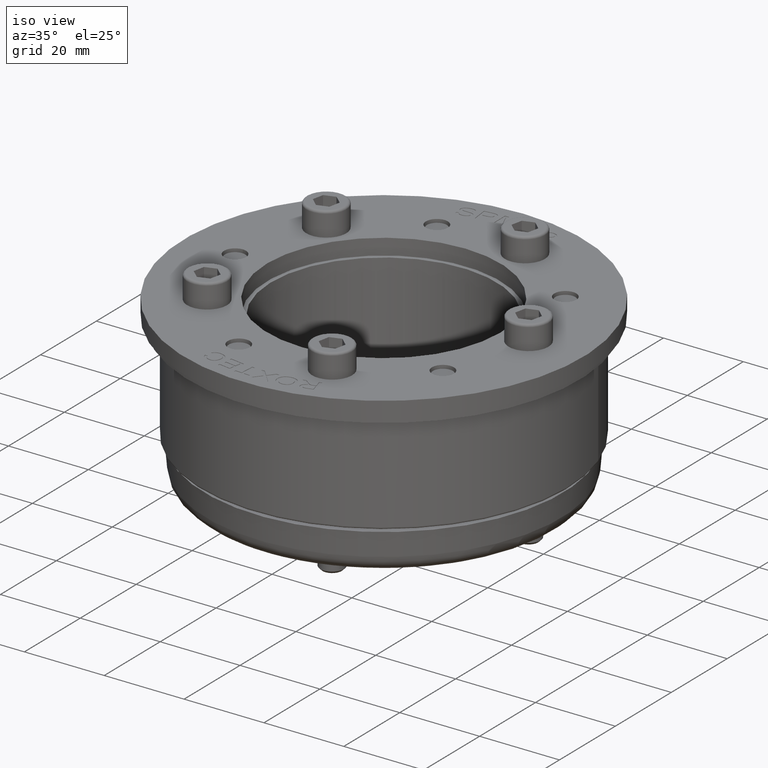
[diagram: clean part render]
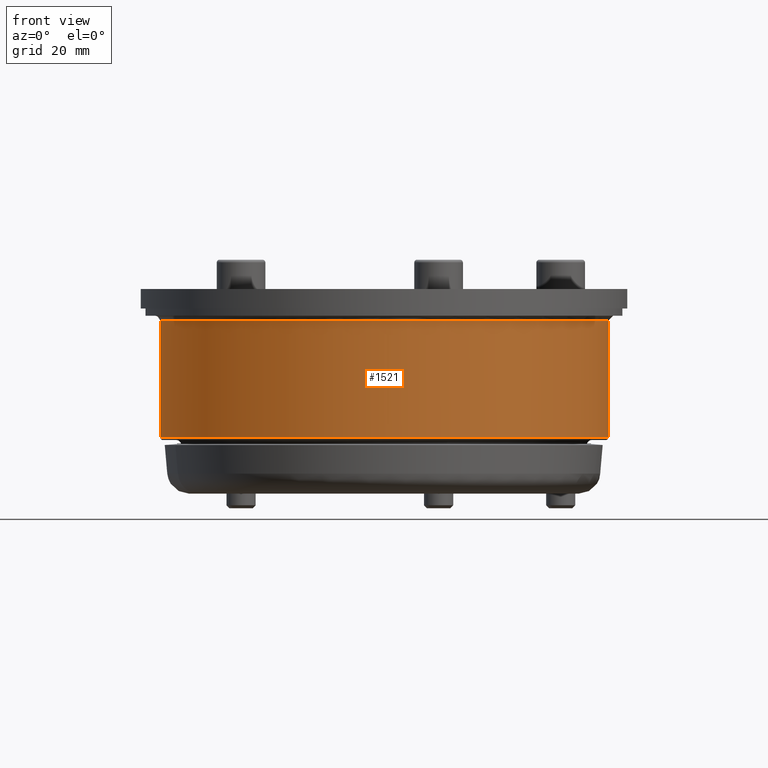
[diagram: tour spotlight — one face highlighted and labeled with its STEP entity id]
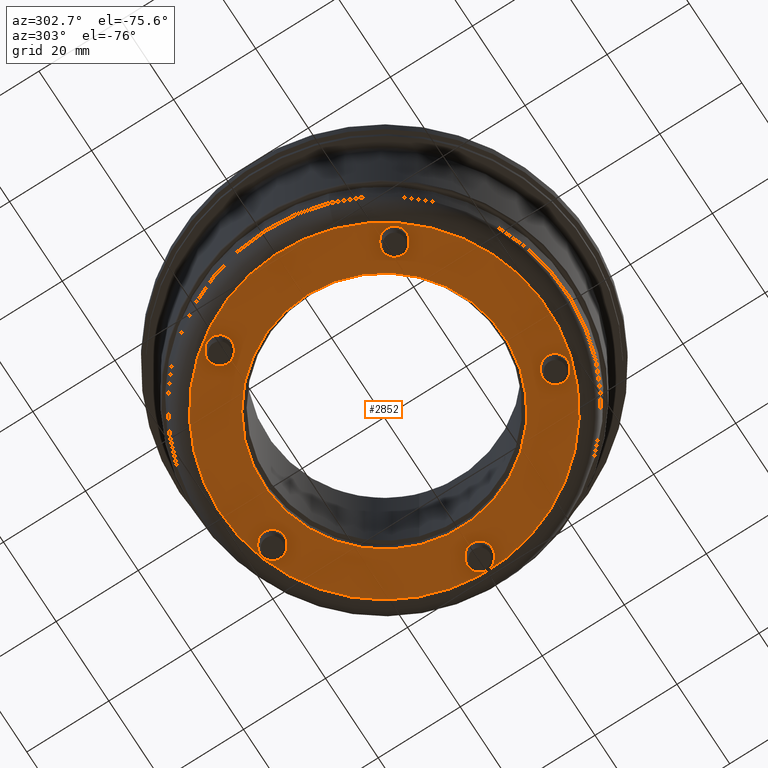
[diagram: tour spotlight — one face highlighted and labeled with its STEP entity id]
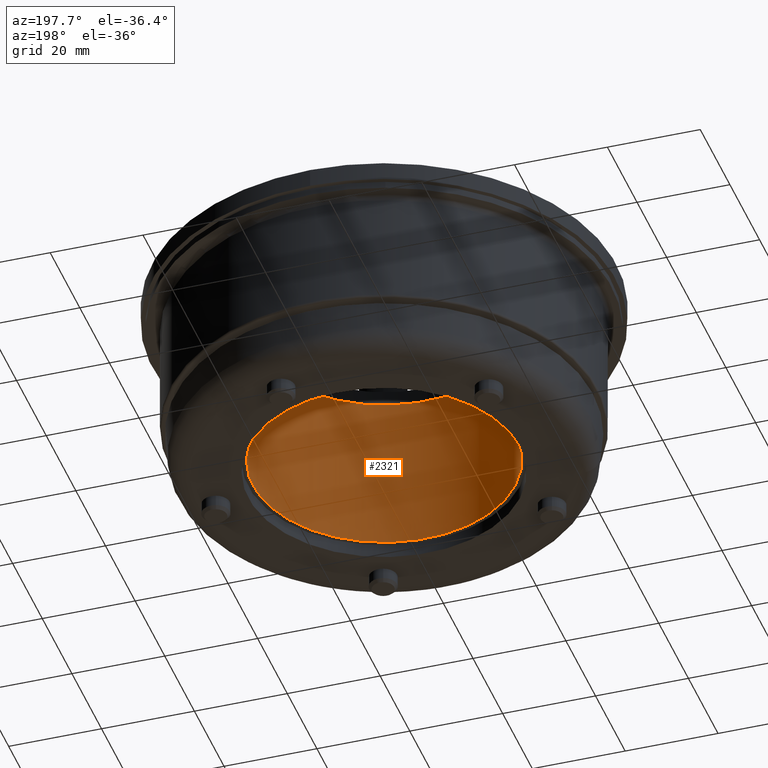
[diagram: tour spotlight — one face highlighted and labeled with its STEP entity id]
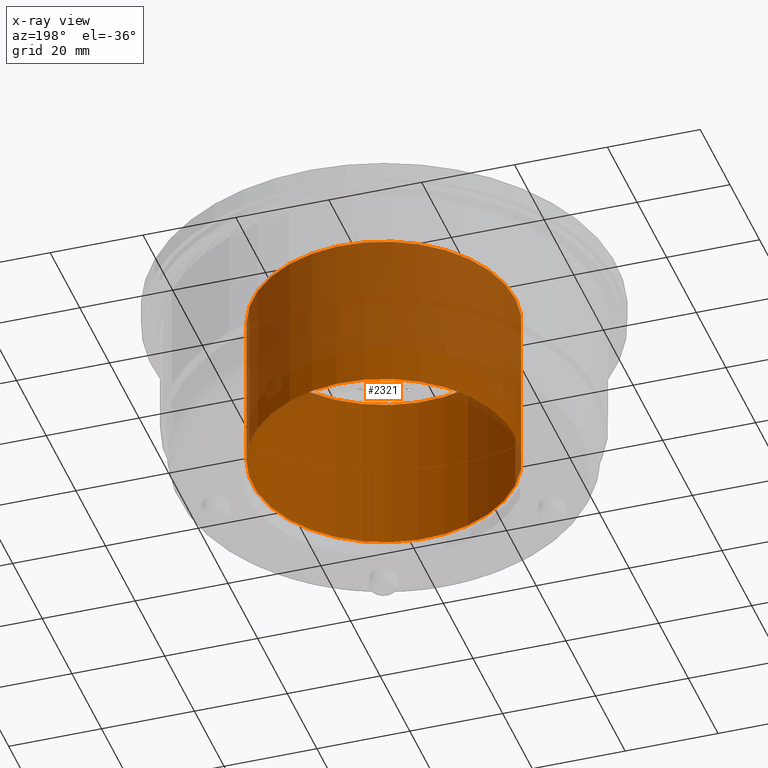
[diagram: x-ray of the same camera — body ghosted, this tour face saturated]
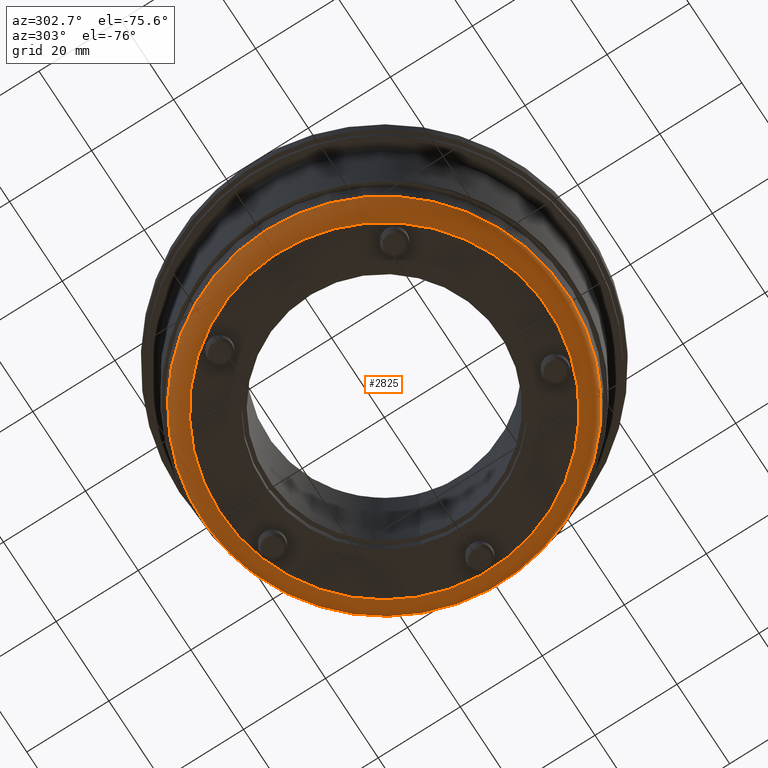
[diagram: tour spotlight — one face highlighted and labeled with its STEP entity id]
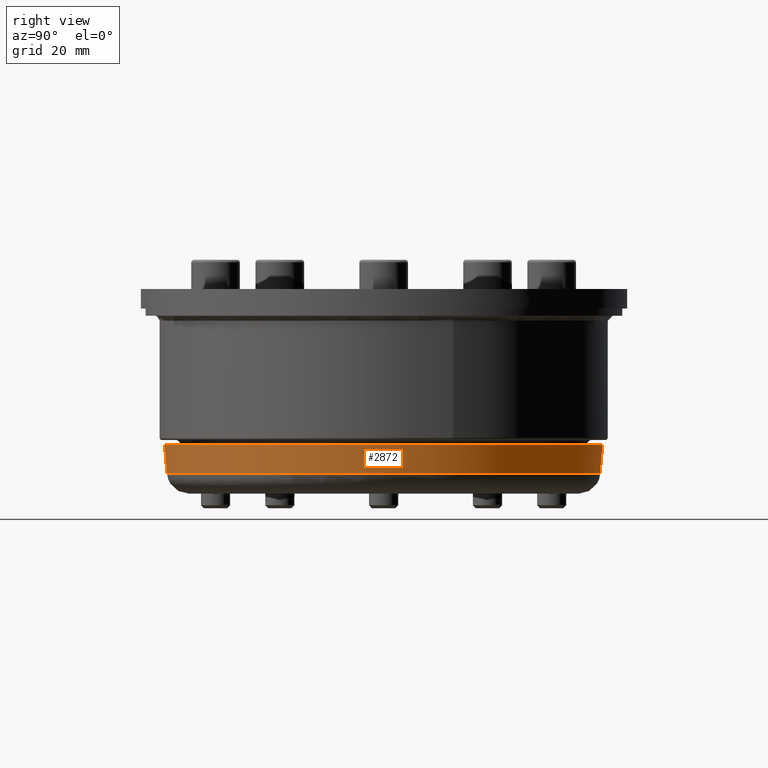
[diagram: tour spotlight — one face highlighted and labeled with its STEP entity id]
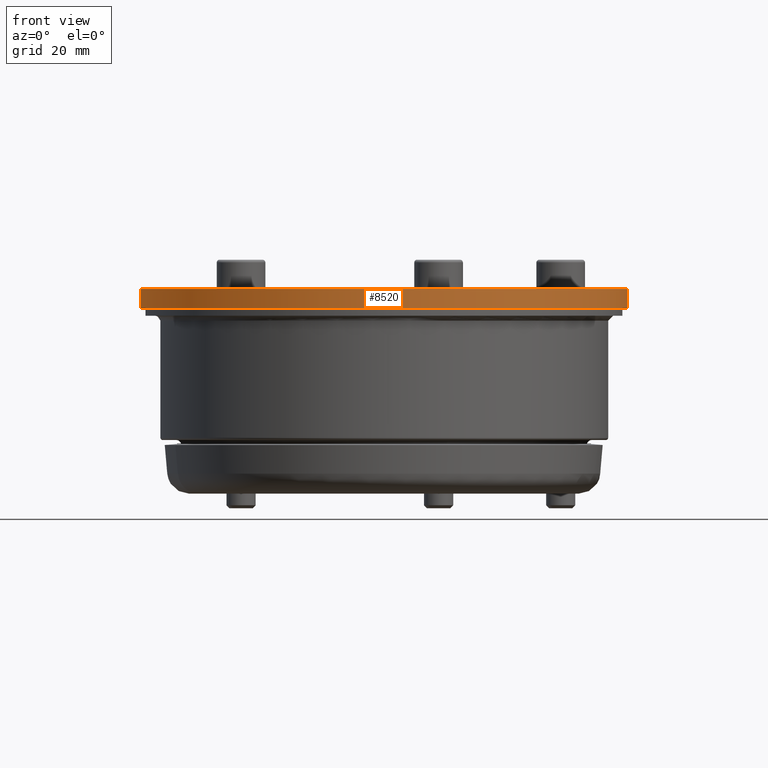
[diagram: tour spotlight — one face highlighted and labeled with its STEP entity id]
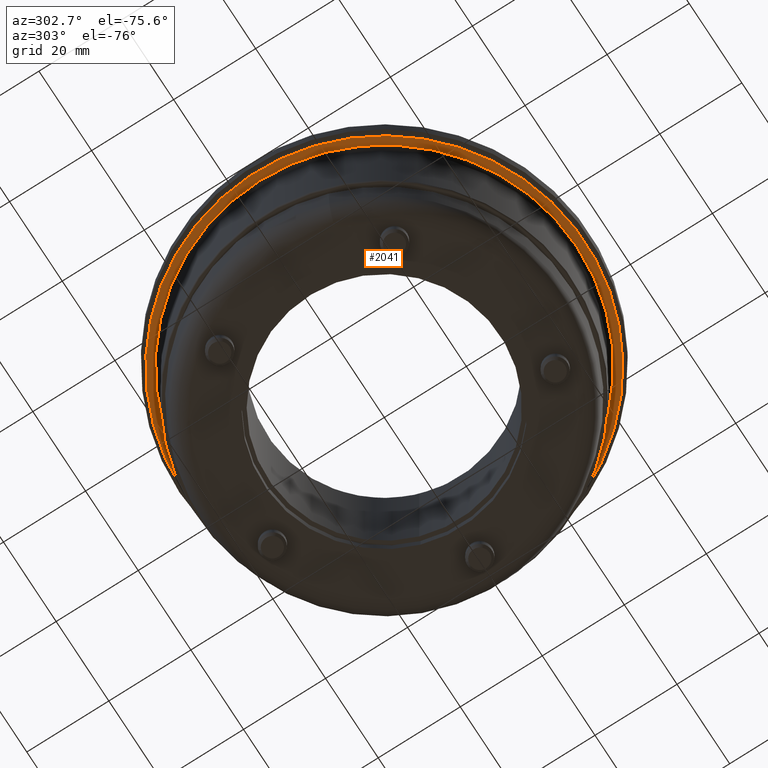
[diagram: tour spotlight — one face highlighted and labeled with its STEP entity id]
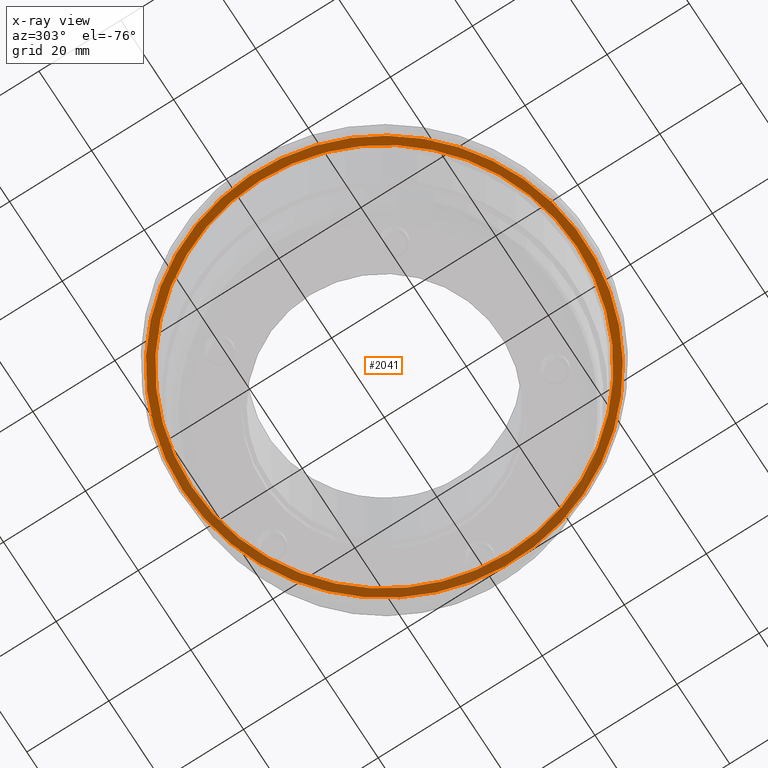
[diagram: x-ray of the same camera — body ghosted, this tour face saturated]
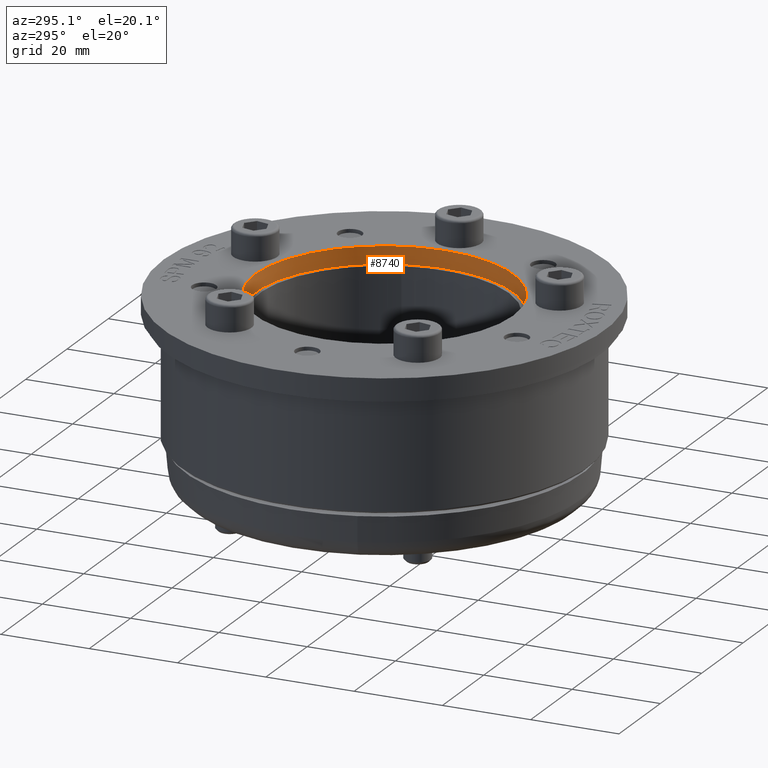
[diagram: tour spotlight — one face highlighted and labeled with its STEP entity id]
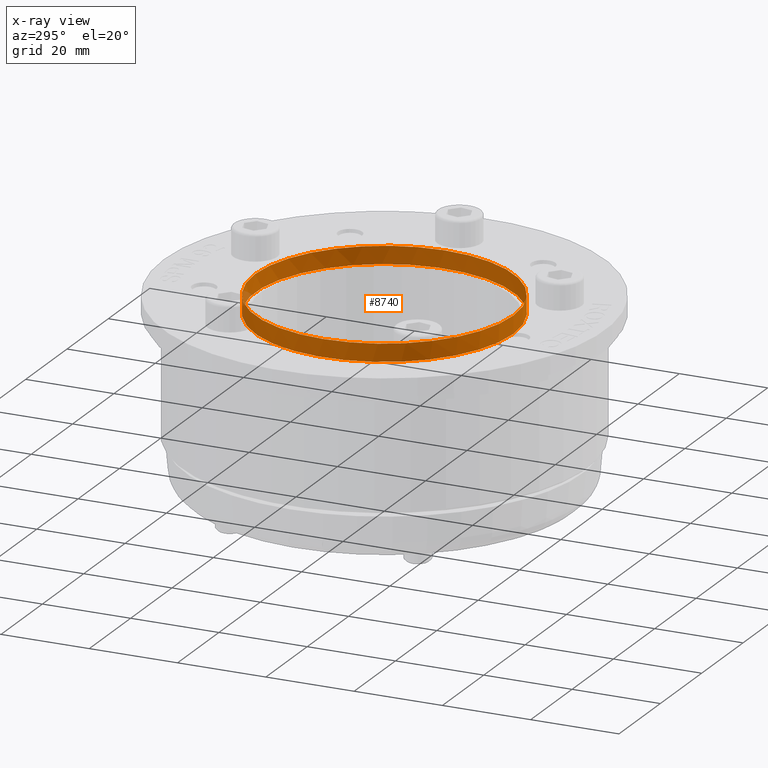
[diagram: x-ray of the same camera — body ghosted, this tour face saturated]
A machine part: a face-by-face anatomy tour. The part has 349 B-rep faces; the first image is the clean iso view, then the 8 largest visible faces are spotlighted one at a time (largest first), each with its STEP entity span.

Face 1 — front view, entity #1521. In plain terms, the highlighted cylindrical surface (bore or boss wall) has radius 46 mm, axis along (-0, -0, 1).
Definition (entity closure, byte-faithful):
#1470=CARTESIAN_POINT('',(46.000000000000007,-5.078264E-015,8.499999999999998));
#1471=VERTEX_POINT('',#1470);
#1472=CARTESIAN_POINT('',(-5.551115E-016,5.551115E-016,8.499999999999998));
#1473=DIRECTION('',(0.0,0.0,-1.0));
#1474=DIRECTION('',(-1.0,0.0,0.0));
#1475=AXIS2_PLACEMENT_3D('',#1472,#1473,#1474);
#1476=CIRCLE('',#1475,46.000000000000007);
#1477=EDGE_CURVE('',#1471,#1471,#1476,.T.);
#1502=CARTESIAN_POINT('',(-5.551115E-016,5.551115E-016,0.0));
#1503=DIRECTION('',(0.0,0.0,1.0));
#1504=DIRECTION('',(-1.0,0.0,0.0));
#1505=AXIS2_PLACEMENT_3D('',#1502,#1503,#1504);
#1506=CYLINDRICAL_SURFACE('',#1505,46.000000000000007);
#1507=CARTESIAN_POINT('',(46.000000000000007,6.004790E-015,32.5));
#1508=VERTEX_POINT('',#1507);
#1509=CARTESIAN_POINT('',(-5.551115E-016,5.551115E-016,32.5));
#1510=DIRECTION('',(0.0,0.0,1.0));
#1511=DIRECTION('',(-1.0,0.0,0.0));
#1512=AXIS2_PLACEMENT_3D('',#1509,#1510,#1511);
#1513=CIRCLE('',#1512,46.000000000000007);
#1514=EDGE_CURVE('',#1508,#1508,#1513,.T.);
#1515=ORIENTED_EDGE('',*,*,#1514,.F.);
#1516=EDGE_LOOP('',(#1515));
#1517=FACE_OUTER_BOUND('',#1516,.T.);
#1518=ORIENTED_EDGE('',*,*,#1477,.F.);
#1519=EDGE_LOOP('',(#1518));
#1520=FACE_BOUND('',#1519,.T.);
#1521=ADVANCED_FACE('',(#1517,#1520),#1506,.T.);

Face 2 — auxiliary view, entity #2852. In plain terms, the highlighted planar face has unit normal (-0, -0, -1).
Definition (entity closure, byte-faithful):
#2571=CARTESIAN_POINT('',(19.480000000000011,-2.999999999999985,3.582092E-015));
#2572=VERTEX_POINT('',#2571);
#2573=CARTESIAN_POINT('',(-9.769999999999993,-2.999999999999992,0.0));
#2574=DIRECTION('',(0.0,1.0,0.0));
#2575=DIRECTION('',(-1.0,0.0,0.0));
#2576=AXIS2_PLACEMENT_3D('',#2573,#2574,#2575);
#2577=CIRCLE('',#2576,29.250000000000004);
#2578=EDGE_CURVE('',#2572,#2572,#2577,.T.);
#2599=CARTESIAN_POINT('',(-43.473256229761958,-3.0,13.579507336829728));
#2600=VERTEX_POINT('',#2599);
#2601=CARTESIAN_POINT('',(-44.245798715699323,-3.0,11.201866046091844));
#2602=DIRECTION('',(-2.120337E-017,1.0,-6.525727E-017));
#2603=DIRECTION('',(-0.309016994374947,-6.861556E-017,-0.951056516295154));
#2604=AXIS2_PLACEMENT_3D('',#2601,#2602,#2603);
#2605=CIRCLE('',#2604,2.5);
#2606=EDGE_CURVE('',#2600,#2600,#2605,.T.);
#2627=CARTESIAN_POINT('',(-33.099757881539517,-2.999999999999998,-27.857402915360669));
#2628=VERTEX_POINT('',#2627);
#2629=CARTESIAN_POINT('',(-31.077215395602146,-2.999999999999997,-29.326866046091851));
#2630=DIRECTION('',(-1.453301E-016,1.0,1.055885E-016));
#2631=DIRECTION('',(0.809016994374947,1.796379E-016,-0.587785252292473));
#2632=AXIS2_PLACEMENT_3D('',#2629,#2630,#2631);
#2633=CIRCLE('',#2632,2.5);
#2634=EDGE_CURVE('',#2628,#2628,#2633,.T.);
#2655=CARTESIAN_POINT('',(9.514672909664796,-2.999999999999989,-30.796329176823029));
#2656=VERTEX_POINT('',#2655);
#2657=CARTESIAN_POINT('',(11.537215395602164,-2.999999999999988,-29.326866046091844));
#2658=DIRECTION('',(-1.453301E-016,1.0,-1.055885E-016));
#2659=DIRECTION('',(0.809016994374947,1.796379E-016,0.587785252292473));
#2660=AXIS2_PLACEMENT_3D('',#2657,#2658,#2659);
#2661=CIRCLE('',#2660,2.5);
#2662=EDGE_CURVE('',#2656,#2656,#2661,.T.);
#2683=CARTESIAN_POINT('',(25.478341201636702,-2.999999999999985,8.824224755353963));
#2684=VERTEX_POINT('',#2683);
#2685=CARTESIAN_POINT('',(24.705798715699331,-2.999999999999985,11.201866046091848));
#2686=DIRECTION('',(-2.120337E-017,1.0,6.525727E-017));
#2687=DIRECTION('',(-0.309016994374948,-6.861556E-017,0.951056516295154));
#2688=AXIS2_PLACEMENT_3D('',#2685,#2686,#2687);
#2689=CIRCLE('',#2688,2.5);
#2690=EDGE_CURVE('',#2684,#2684,#2689,.T.);
#2711=CARTESIAN_POINT('',(-7.269999999999993,-2.999999999999992,36.25));
#2712=VERTEX_POINT('',#2711);
#2713=CARTESIAN_POINT('',(-9.769999999999993,-2.999999999999992,36.25));
#2714=DIRECTION('',(0.0,1.0,0.0));
#2715=DIRECTION('',(-1.0,0.0,0.0));
#2716=AXIS2_PLACEMENT_3D('',#2713,#2714,#2715);
#2717=CIRCLE('',#2716,2.5);
#2718=EDGE_CURVE('',#2712,#2712,#2717,.T.);
#2803=CARTESIAN_POINT('',(-49.755570274622841,-3.000000000000002,0.0));
#2804=VERTEX_POINT('',#2803);
#2805=CARTESIAN_POINT('',(-9.769999999999991,-2.999999999999992,0.0));
#2806=DIRECTION('',(0.0,1.0,0.0));
#2807=DIRECTION('',(1.0,0.0,0.0));
#2808=AXIS2_PLACEMENT_3D('',#2805,#2806,#2807);
#2809=CIRCLE('',#2808,39.985570274622845);
#2810=EDGE_CURVE('',#2804,#2804,#2809,.T.);
#2826=CARTESIAN_POINT('',(-46.814530278850626,-3.0,0.0));
#2827=DIRECTION('',(0.0,-1.0,0.0));
#2828=DIRECTION('',(0.0,0.0,-1.0));
#2829=AXIS2_PLACEMENT_3D('',#2826,#2827,#2828);
#2830=PLANE('',#2829);
#2831=ORIENTED_EDGE('',*,*,#2810,.F.);
#2832=EDGE_LOOP('',(#2831));
#2833=FACE_OUTER_BOUND('',#2832,.T.);
#2834=ORIENTED_EDGE('',*,*,#2578,.T.);
#2835=EDGE_LOOP('',(#2834));
#2836=FACE_BOUND('',#2835,.T.);
#2837=ORIENTED_EDGE('',*,*,#2606,.T.);
#2838=EDGE_LOOP('',(#2837));
#2839=FACE_BOUND('',#2838,.T.);
#2840=ORIENTED_EDGE('',*,*,#2634,.T.);
#2841=EDGE_LOOP('',(#2840));
#2842=FACE_BOUND('',#2841,.T.);
#2843=ORIENTED_EDGE('',*,*,#2662,.T.);
#2844=EDGE_LOOP('',(#2843));
#2845=FACE_BOUND('',#2844,.T.);
#2846=ORIENTED_EDGE('',*,*,#2690,.T.);
#2847=EDGE_LOOP('',(#2846));
#2848=FACE_BOUND('',#2847,.T.);
#2849=ORIENTED_EDGE('',*,*,#2718,.T.);
#2850=EDGE_LOOP('',(#2849));
#2851=FACE_BOUND('',#2850,.T.);
#2852=ADVANCED_FACE('',(#2833,#2836,#2839,#2842,#2845,#2848,#2851),#2830,.T.);

Face 3 — auxiliary view, entity #2321. An x-ray twin of the same camera follows (body ghosted, this face saturated) — the face is partly hidden behind the body. In plain terms, the highlighted cylindrical surface (bore or boss wall) has radius 28.25 mm, axis along (-0, -0, 1).
Definition (entity closure, byte-faithful):
#2085=CARTESIAN_POINT('',(28.25,4.014739E-015,0.0));
#2086=VERTEX_POINT('',#2085);
#2087=CARTESIAN_POINT('',(-5.551115E-016,5.551115E-016,0.0));
#2088=DIRECTION('',(0.0,0.0,1.0));
#2089=DIRECTION('',(-1.0,0.0,0.0));
#2090=AXIS2_PLACEMENT_3D('',#2087,#2088,#2089);
#2091=CIRCLE('',#2090,28.25);
#2092=EDGE_CURVE('',#2086,#2086,#2091,.T.);
#2302=CARTESIAN_POINT('',(-5.551115E-016,5.551115E-016,0.0));
#2303=DIRECTION('',(0.0,0.0,1.0));
#2304=DIRECTION('',(-1.0,0.0,0.0));
#2305=AXIS2_PLACEMENT_3D('',#2302,#2303,#2304);
#2306=CYLINDRICAL_SURFACE('',#2305,28.25);
#2307=CARTESIAN_POINT('',(28.25,4.014739E-015,35.0));
#2308=VERTEX_POINT('',#2307);
#2309=CARTESIAN_POINT('',(-5.551115E-016,5.551115E-016,35.0));
#2310=DIRECTION('',(0.0,0.0,-1.0));
#2311=DIRECTION('',(-1.0,0.0,0.0));
#2312=AXIS2_PLACEMENT_3D('',#2309,#2310,#2311);
#2313=CIRCLE('',#2312,28.25);
#2314=EDGE_CURVE('',#2308,#2308,#2313,.T.);
#2315=ORIENTED_EDGE('',*,*,#2314,.F.);
#2316=EDGE_LOOP('',(#2315));
#2317=FACE_OUTER_BOUND('',#2316,.T.);
#2318=ORIENTED_EDGE('',*,*,#2092,.F.);
#2319=EDGE_LOOP('',(#2318));
#2320=FACE_BOUND('',#2319,.T.);
#2321=ADVANCED_FACE('',(#2317,#2320),#2306,.F.);

Face 4 — auxiliary view, entity #2825. In plain terms, the highlighted toroidal blend (fillet) surface has major radius 39.9856 mm and minor (blend) radius 4.5 mm.
Definition (entity closure, byte-faithful):
#2798=CARTESIAN_POINT('',(-9.769999999999993,1.500000000000012,0.0));
#2799=DIRECTION('',(-2.440479E-016,1.0,0.0));
#2800=DIRECTION('',(0.0,0.0,1.0));
#2801=AXIS2_PLACEMENT_3D('',#2798,#2799,#2800);
#2802=TOROIDAL_SURFACE('',#2801,39.985570274622845,4.5);
#2803=CARTESIAN_POINT('',(-49.755570274622841,-3.000000000000002,0.0));
#2804=VERTEX_POINT('',#2803);
#2805=CARTESIAN_POINT('',(-9.769999999999991,-2.999999999999992,0.0));
#2806=DIRECTION('',(0.0,1.0,0.0));
#2807=DIRECTION('',(1.0,0.0,0.0));
#2808=AXIS2_PLACEMENT_3D('',#2805,#2806,#2807);
#2809=CIRCLE('',#2808,39.985570274622845);
#2810=EDGE_CURVE('',#2804,#2804,#2809,.T.);
#2811=ORIENTED_EDGE('',*,*,#2810,.T.);
#2812=EDGE_LOOP('',(#2811));
#2813=FACE_OUTER_BOUND('',#2812,.T.);
#2814=CARTESIAN_POINT('',(-54.238446416035693,1.107799157635541,-1.089163E-014));
#2815=VERTEX_POINT('',#2814);
#2816=CARTESIAN_POINT('',(-9.769999999999993,1.107799157635552,-5.445814E-015));
#2817=DIRECTION('',(0.0,-1.0,0.0));
#2818=DIRECTION('',(1.0,0.0,0.0));
#2819=AXIS2_PLACEMENT_3D('',#2816,#2817,#2818);
#2820=CIRCLE('',#2819,44.468446416035697);
#2821=EDGE_CURVE('',#2815,#2815,#2820,.T.);
#2822=ORIENTED_EDGE('',*,*,#2821,.T.);
#2823=EDGE_LOOP('',(#2822));
#2824=FACE_BOUND('',#2823,.T.);
#2825=ADVANCED_FACE('',(#2813,#2824),#2802,.T.);

Face 5 — right view, entity #2872. In plain terms, the highlighted conical surface has half-angle 5 deg.
Definition (entity closure, byte-faithful):
#2814=CARTESIAN_POINT('',(-54.238446416035693,1.107799157635541,-1.089163E-014));
#2815=VERTEX_POINT('',#2814);
#2816=CARTESIAN_POINT('',(-9.769999999999993,1.107799157635552,-5.445814E-015));
#2817=DIRECTION('',(0.0,-1.0,0.0));
#2818=DIRECTION('',(1.0,0.0,0.0));
#2819=AXIS2_PLACEMENT_3D('',#2816,#2817,#2818);
#2820=CIRCLE('',#2819,44.468446416035697);
#2821=EDGE_CURVE('',#2815,#2815,#2820,.T.);
#2853=CARTESIAN_POINT('',(-9.769999999999993,1.994266385878523,0.0));
#2854=DIRECTION('',(-2.440479E-016,1.0,0.0));
#2855=DIRECTION('',(-1.0,0.0,0.0));
#2856=AXIS2_PLACEMENT_3D('',#2853,#2854,#2855);
#2857=CONICAL_SURFACE('',#2856,44.546002249094208,4.999999999999988);
#2858=CARTESIAN_POINT('',(-54.752943940487164,6.988532771757026,0.0));
#2859=VERTEX_POINT('',#2858);
#2860=CARTESIAN_POINT('',(-9.769999999999994,6.988532771757036,0.0));
#2861=DIRECTION('',(0.0,1.0,0.0));
#2862=DIRECTION('',(-1.0,0.0,0.0));
#2863=AXIS2_PLACEMENT_3D('',#2860,#2861,#2862);
#2864=CIRCLE('',#2863,44.982943940487168);
#2865=EDGE_CURVE('',#2859,#2859,#2864,.T.);
#2866=ORIENTED_EDGE('',*,*,#2865,.F.);
#2867=EDGE_LOOP('',(#2866));
#2868=FACE_OUTER_BOUND('',#2867,.T.);
#2869=ORIENTED_EDGE('',*,*,#2821,.F.);
#2870=EDGE_LOOP('',(#2869));
#2871=FACE_BOUND('',#2870,.T.);
#2872=ADVANCED_FACE('',(#2868,#2871),#2857,.T.);

Face 6 — front view, entity #8520. In plain terms, the highlighted cylindrical surface (bore or boss wall) has radius 49.95 mm, axis along (-0, -0, -1).
Definition (entity closure, byte-faithful):
#5609=CARTESIAN_POINT('',(49.950000000000003,-0.999999999999991,6.117111E-015));
#5610=VERTEX_POINT('',#5609);
#5611=CARTESIAN_POINT('',(0.0,-0.999999999999991,0.0));
#5612=DIRECTION('',(0.0,-1.0,0.0));
#5613=DIRECTION('',(-1.0,0.0,0.0));
#5614=AXIS2_PLACEMENT_3D('',#5611,#5612,#5613);
#5615=CIRCLE('',#5614,49.950000000000003);
#5616=EDGE_CURVE('',#5610,#5610,#5615,.F.);
#8501=CARTESIAN_POINT('',(0.0,-2.499999999999992,0.0));
#8502=DIRECTION('',(0.0,-1.0,0.0));
#8503=DIRECTION('',(-1.0,0.0,0.0));
#8504=AXIS2_PLACEMENT_3D('',#8501,#8502,#8503);
#8505=CYLINDRICAL_SURFACE('',#8504,49.950000000000003);
#8506=CARTESIAN_POINT('',(49.950000000000003,-4.999999999999993,-6.117111E-015));
#8507=VERTEX_POINT('',#8506);
#8508=CARTESIAN_POINT('',(0.0,-4.999999999999993,0.0));
#8509=DIRECTION('',(0.0,1.0,0.0));
#8510=DIRECTION('',(-1.0,0.0,0.0));
#8511=AXIS2_PLACEMENT_3D('',#8508,#8509,#8510);
#8512=CIRCLE('',#8511,49.950000000000003);
#8513=EDGE_CURVE('',#8507,#8507,#8512,.F.);
#8514=ORIENTED_EDGE('',*,*,#8513,.F.);
#8515=EDGE_LOOP('',(#8514));
#8516=FACE_OUTER_BOUND('',#8515,.T.);
#8517=ORIENTED_EDGE('',*,*,#5616,.F.);
#8518=EDGE_LOOP('',(#8517));
#8519=FACE_BOUND('',#8518,.T.);
#8520=ADVANCED_FACE('',(#8516,#8519),#8505,.T.);

Face 7 — auxiliary view, entity #2041. An x-ray twin of the same camera follows (body ghosted, this face saturated) — the face is partly hidden behind the body. In plain terms, the highlighted planar face has unit normal (0, 0, -1).
Definition (entity closure, byte-faithful):
#2007=CARTESIAN_POINT('',(47.0,-5.572116E-015,33.500000000000007));
#2008=VERTEX_POINT('',#2007);
#2009=CARTESIAN_POINT('',(-5.551115E-016,3.714145E-016,33.500000000000007));
#2010=DIRECTION('',(0.0,0.0,-1.0));
#2011=DIRECTION('',(-1.0,0.0,0.0));
#2012=AXIS2_PLACEMENT_3D('',#2009,#2010,#2011);
#2013=CIRCLE('',#2012,47.0);
#2014=EDGE_CURVE('',#2008,#2008,#2013,.T.);
#2022=CARTESIAN_POINT('',(0.0,-47.25,33.5));
#2023=DIRECTION('',(0.0,0.0,-1.0));
#2024=DIRECTION('',(-1.0,0.0,0.0));
#2025=AXIS2_PLACEMENT_3D('',#2022,#2023,#2024);
#2026=PLANE('',#2025);
#2027=CARTESIAN_POINT('',(-5.994646E-015,48.949999999999974,33.500000000000021));
#2028=VERTEX_POINT('',#2027);
#2029=CARTESIAN_POINT('',(0.0,-6.153850E-015,33.500000000000007));
#2030=DIRECTION('',(0.0,0.0,1.0));
#2031=DIRECTION('',(0.0,-1.0,0.0));
#2032=AXIS2_PLACEMENT_3D('',#2029,#2030,#2031);
#2033=CIRCLE('',#2032,48.949999999999989);
#2034=EDGE_CURVE('',#2028,#2028,#2033,.T.);
#2035=ORIENTED_EDGE('',*,*,#2034,.F.);
#2036=EDGE_LOOP('',(#2035));
#2037=FACE_OUTER_BOUND('',#2036,.T.);
#2038=ORIENTED_EDGE('',*,*,#2014,.F.);
#2039=EDGE_LOOP('',(#2038));
#2040=FACE_BOUND('',#2039,.T.);
#2041=ADVANCED_FACE('',(#2037,#2040),#2026,.T.);

Face 8 — auxiliary view, entity #8740. An x-ray twin of the same camera follows (body ghosted, this face saturated) — the face is partly hidden behind the body. In plain terms, the highlighted cylindrical surface (bore or boss wall) has radius 29.25 mm, axis along (0, 0, 1).
Definition (entity closure, byte-faithful):
#6350=CARTESIAN_POINT('',(29.249999999999993,-0.999999999999991,3.582092E-015));
#6351=VERTEX_POINT('',#6350);
#6352=CARTESIAN_POINT('',(0.0,-0.999999999999991,0.0));
#6353=DIRECTION('',(0.0,-1.0,0.0));
#6354=DIRECTION('',(-1.0,0.0,0.0));
#6355=AXIS2_PLACEMENT_3D('',#6352,#6353,#6354);
#6356=CIRCLE('',#6355,29.249999999999993);
#6357=EDGE_CURVE('',#6351,#6351,#6356,.F.);
#8721=CARTESIAN_POINT('',(0.0,-3.74999999999999,0.0));
#8722=DIRECTION('',(0.0,1.0,0.0));
#8723=DIRECTION('',(-1.0,0.0,0.0));
#8724=AXIS2_PLACEMENT_3D('',#8721,#8722,#8723);
#8725=CYLINDRICAL_SURFACE('',#8724,29.249999999999993);
#8726=CARTESIAN_POINT('',(-29.25,-4.99999999999999,0.0));
#8727=VERTEX_POINT('',#8726);
#8728=CARTESIAN_POINT('',(0.0,-4.99999999999999,0.0));
#8729=DIRECTION('',(0.0,1.0,0.0));
#8730=DIRECTION('',(-1.0,0.0,0.0));
#8731=AXIS2_PLACEMENT_3D('',#8728,#8729,#8730);
#8732=CIRCLE('',#8731,29.25);
#8733=EDGE_CURVE('',#8727,#8727,#8732,.T.);
#8734=ORIENTED_EDGE('',*,*,#8733,.F.);
#8735=EDGE_LOOP('',(#8734));
#8736=FACE_OUTER_BOUND('',#8735,.T.);
#8737=ORIENTED_EDGE('',*,*,#6357,.T.);
#8738=EDGE_LOOP('',(#8737));
#8739=FACE_BOUND('',#8738,.T.);
#8740=ADVANCED_FACE('',(#8736,#8739),#8725,.F.);